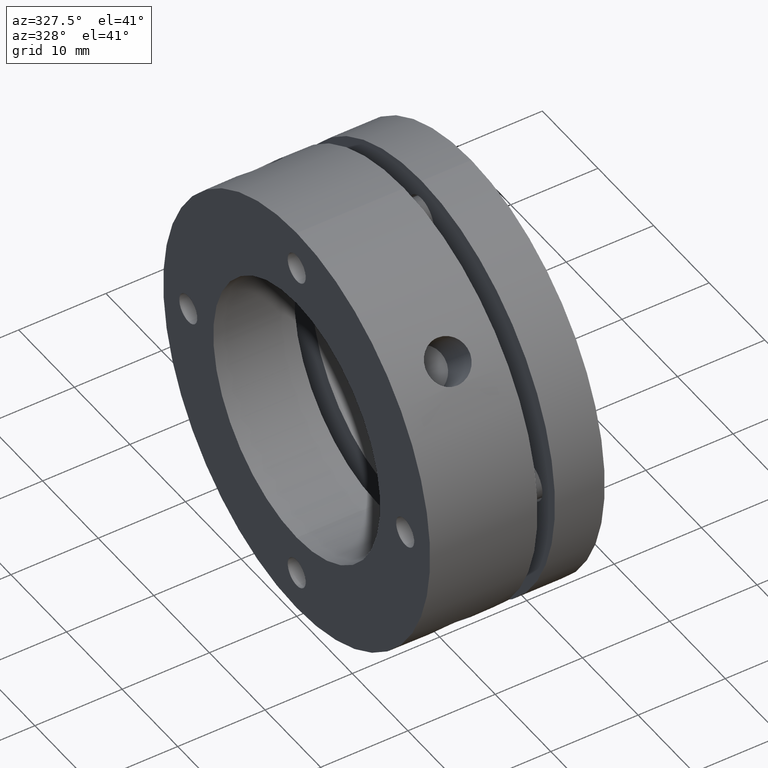
[diagram: clean part render]
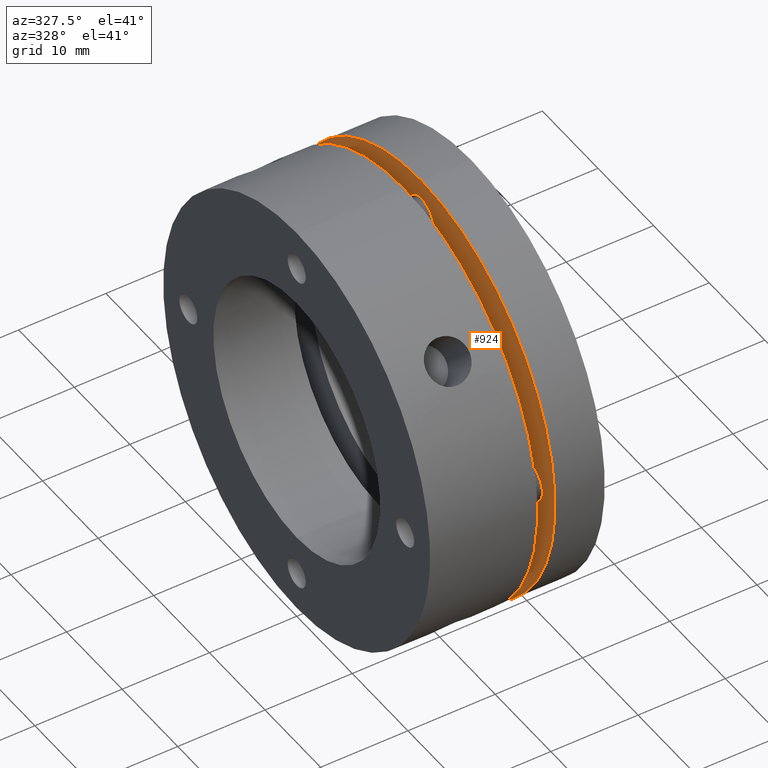
[diagram: same view with one face highlighted and labeled with its STEP entity id]
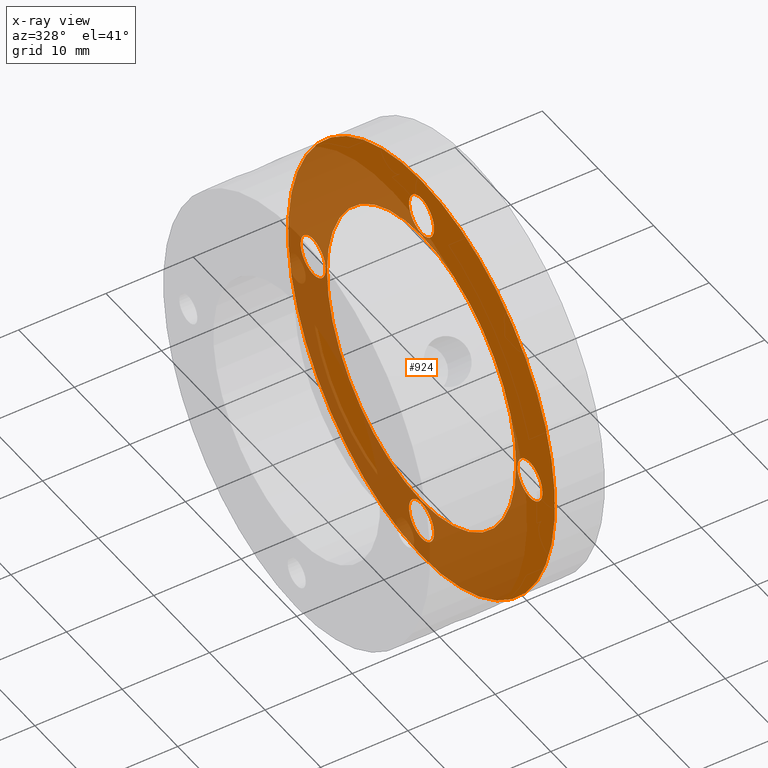
[diagram: x-ray of the same camera — body ghosted, the highlighted face saturated]
A machine part, auxiliary view. The second image highlights one B-rep face of the part: STEP entity #924.
The next image is the same camera in x-ray: the body ghosted, the highlighted face saturated — about 57% of this face is hidden behind the body in this view.
In plain terms, the highlighted planar face has unit normal (1, 0, 0).
Its self-contained STEP definition (entity closure, byte-faithful):
#240 = AXIS2_PLACEMENT_3D ( 'NONE', #1608, #1603, #1610 ) ;
#275 = VERTEX_POINT ( 'NONE', #1115 ) ;
#276 = VERTEX_POINT ( 'NONE', #1119 ) ;
#279 = VERTEX_POINT ( 'NONE', #1113 ) ;
#289 = VERTEX_POINT ( 'NONE', #1166 ) ;
#296 = VERTEX_POINT ( 'NONE', #1173 ) ;
#300 = VERTEX_POINT ( 'NONE', #1177 ) ;
#303 = VERTEX_POINT ( 'NONE', #1180 ) ;
#479 = AXIS2_PLACEMENT_3D ( 'NONE', #1315, #1316, #1317 ) ;
#492 = AXIS2_PLACEMENT_3D ( 'NONE', #1292, #1293, #1294 ) ;
#572 = CIRCLE ( 'NONE', #492, 24.00000000000000400 ) ;
#583 = CIRCLE ( 'NONE', #479, 2.250000000000000400 ) ;
#772 = FACE_BOUND ( 'NONE', #3558, .T. ) ;
#773 = FACE_BOUND ( 'NONE', #3171, .T. ) ;
#774 = FACE_BOUND ( 'NONE', #3556, .T. ) ;
#775 = FACE_BOUND ( 'NONE', #3201, .T. ) ;
#776 = FACE_BOUND ( 'NONE', #3543, .T. ) ;
#777 = FACE_OUTER_BOUND ( 'NONE', #3557, .T. ) ;
#815 = EDGE_CURVE ( 'NONE', #1002, #1047, #572, .T. ) ;
#824 = EDGE_CURVE ( 'NONE', #1080, #998, #583, .T. ) ;
#924 = ADVANCED_FACE ( 'NONE', ( #772, #776, #773, #775, #774, #777 ), #1607, .F. ) ;
#998 = VERTEX_POINT ( 'NONE', #1708 ) ;
#1002 = VERTEX_POINT ( 'NONE', #1707 ) ;
#1047 = VERTEX_POINT ( 'NONE', #1723 ) ;
#1066 = VERTEX_POINT ( 'NONE', #1731 ) ;
#1080 = VERTEX_POINT ( 'NONE', #1734 ) ;
#1113 = CARTESIAN_POINT ( 'NONE',  ( 14.29999999999999900, 2.081899558550500300E-015, -17.00000000000000000 ) ) ;
#1115 = CARTESIAN_POINT ( 'NONE',  ( 14.29999999999999900, -2.388060999999999800E-015, -21.75000000000001100 ) ) ;
#1119 = CARTESIAN_POINT ( 'NONE',  ( 14.29999999999999900, 0.0000000000000000000, 17.00000000000000000 ) ) ;
#1166 = CARTESIAN_POINT ( 'NONE',  ( 14.29999999999999900, -19.50000000000001400, 2.250000000000001800 ) ) ;
#1173 = CARTESIAN_POINT ( 'NONE',  ( 14.29999999999999900, -19.50000000000001400, -2.249999999999999100 ) ) ;
#1177 = CARTESIAN_POINT ( 'NONE',  ( 14.29999999999999900, 2.755455298081546700E-016, 21.75000000000001100 ) ) ;
#1180 = CARTESIAN_POINT ( 'NONE',  ( 14.29999999999999900, 0.0000000000000000000, 17.25000000000001400 ) ) ;
#1292 = CARTESIAN_POINT ( 'NONE',  ( 14.29999999999999900, 0.0000000000000000000, 0.0000000000000000000 ) ) ;
#1293 = DIRECTION ( 'NONE',  ( 1.000000000000000000, 0.0000000000000000000, 0.0000000000000000000 ) ) ;
#1294 = DIRECTION ( 'NONE',  ( 0.0000000000000000000, 0.0000000000000000000, -1.000000000000000000 ) ) ;
#1315 = CARTESIAN_POINT ( 'NONE',  ( 14.29999999999999900, 19.50000000000001400, -3.582092000000000200E-015 ) ) ;
#1316 = DIRECTION ( 'NONE',  ( -1.000000000000000000, -0.0000000000000000000, -0.0000000000000000000 ) ) ;
#1317 = DIRECTION ( 'NONE',  ( 0.0000000000000000000, 0.0000000000000000000, -1.000000000000000000 ) ) ;
#1603 = DIRECTION ( 'NONE',  ( 1.000000000000000000, -0.0000000000000000000, 0.0000000000000000000 ) ) ;
#1607 = PLANE ( 'NONE',  #240 ) ;
#1608 = CARTESIAN_POINT ( 'NONE',  ( 14.29999999999999900, 20.50000000000000400, 0.0000000000000000000 ) ) ;
#1610 = DIRECTION ( 'NONE',  ( 0.0000000000000000000, 0.0000000000000000000, -1.000000000000000000 ) ) ;
#1707 = CARTESIAN_POINT ( 'NONE',  ( 14.29999999999999900, 0.0000000000000000000, -24.00000000000000400 ) ) ;
#1708 = CARTESIAN_POINT ( 'NONE',  ( 14.29999999999999900, 19.50000000000001400, 2.249999999999996900 ) ) ;
#1723 = CARTESIAN_POINT ( 'NONE',  ( 14.29999999999999900, 2.939152317953648300E-015, 24.00000000000000400 ) ) ;
#1731 = CARTESIAN_POINT ( 'NONE',  ( 14.29999999999999900, -2.112515470191844900E-015, -17.25000000000001400 ) ) ;
#1734 = CARTESIAN_POINT ( 'NONE',  ( 14.29999999999999900, 19.50000000000001400, -2.250000000000003600 ) ) ;
#1838 = CARTESIAN_POINT ( 'NONE',  ( 14.29999999999999900, 0.0000000000000000000, 0.0000000000000000000 ) ) ;
#1839 = DIRECTION ( 'NONE',  ( 1.000000000000000000, 0.0000000000000000000, 0.0000000000000000000 ) ) ;
#1840 = DIRECTION ( 'NONE',  ( 0.0000000000000000000, 0.0000000000000000000, -1.000000000000000000 ) ) ;
#1843 = CARTESIAN_POINT ( 'NONE',  ( 14.29999999999999900, 19.50000000000001400, -3.582092000000000200E-015 ) ) ;
#1844 = DIRECTION ( 'NONE',  ( -1.000000000000000000, -0.0000000000000000000, -0.0000000000000000000 ) ) ;
#1845 = DIRECTION ( 'NONE',  ( 0.0000000000000000000, 0.0000000000000000000, -1.000000000000000000 ) ) ;
#2138 = CARTESIAN_POINT ( 'NONE',  ( 14.29999999999999900, -2.388060999999999800E-015, -19.50000000000001400 ) ) ;
#2139 = DIRECTION ( 'NONE',  ( -1.000000000000000000, -0.0000000000000000000, -0.0000000000000000000 ) ) ;
#2140 = DIRECTION ( 'NONE',  ( 0.0000000000000000000, 0.0000000000000000000, -1.000000000000000000 ) ) ;
#2141 = CARTESIAN_POINT ( 'NONE',  ( 14.29999999999999900, -19.50000000000001400, 1.194031000000000000E-015 ) ) ;
#2142 = DIRECTION ( 'NONE',  ( -1.000000000000000000, -0.0000000000000000000, -0.0000000000000000000 ) ) ;
#2143 = DIRECTION ( 'NONE',  ( 0.0000000000000000000, 0.0000000000000000000, -1.000000000000000000 ) ) ;
#2144 = CARTESIAN_POINT ( 'NONE',  ( 14.29999999999999900, 0.0000000000000000000, 19.50000000000001400 ) ) ;
#2145 = DIRECTION ( 'NONE',  ( -1.000000000000000000, -0.0000000000000000000, -0.0000000000000000000 ) ) ;
#2146 = DIRECTION ( 'NONE',  ( 0.0000000000000000000, 0.0000000000000000000, -1.000000000000000000 ) ) ;
#2165 = CARTESIAN_POINT ( 'NONE',  ( 14.29999999999999900, 0.0000000000000000000, 0.0000000000000000000 ) ) ;
#2166 = DIRECTION ( 'NONE',  ( -1.000000000000000000, 0.0000000000000000000, 0.0000000000000000000 ) ) ;
#2167 = DIRECTION ( 'NONE',  ( 0.0000000000000000000, 0.0000000000000000000, 1.000000000000000000 ) ) ;
#2284 = CARTESIAN_POINT ( 'NONE',  ( 14.29999999999999900, -19.50000000000001400, 1.194031000000000000E-015 ) ) ;
#2285 = DIRECTION ( 'NONE',  ( -1.000000000000000000, -0.0000000000000000000, -0.0000000000000000000 ) ) ;
#2286 = DIRECTION ( 'NONE',  ( 0.0000000000000000000, 0.0000000000000000000, -1.000000000000000000 ) ) ;
#2288 = CARTESIAN_POINT ( 'NONE',  ( 14.29999999999999900, 0.0000000000000000000, 19.50000000000001400 ) ) ;
#2289 = DIRECTION ( 'NONE',  ( -1.000000000000000000, -0.0000000000000000000, -0.0000000000000000000 ) ) ;
#2290 = DIRECTION ( 'NONE',  ( 0.0000000000000000000, 0.0000000000000000000, -1.000000000000000000 ) ) ;
#2368 = CARTESIAN_POINT ( 'NONE',  ( 14.29999999999999900, -2.388060999999999800E-015, -19.50000000000001400 ) ) ;
#2369 = DIRECTION ( 'NONE',  ( -1.000000000000000000, -0.0000000000000000000, -0.0000000000000000000 ) ) ;
#2370 = DIRECTION ( 'NONE',  ( 0.0000000000000000000, 0.0000000000000000000, -1.000000000000000000 ) ) ;
#2381 = CARTESIAN_POINT ( 'NONE',  ( 14.29999999999999900, 0.0000000000000000000, 0.0000000000000000000 ) ) ;
#2382 = DIRECTION ( 'NONE',  ( -1.000000000000000000, 0.0000000000000000000, 0.0000000000000000000 ) ) ;
#2383 = DIRECTION ( 'NONE',  ( 0.0000000000000000000, 0.0000000000000000000, 1.000000000000000000 ) ) ;
#2615 = CIRCLE ( 'NONE', #3362, 24.00000000000000400 ) ;
#2617 = CIRCLE ( 'NONE', #3363, 2.250000000000000400 ) ;
#2680 = CIRCLE ( 'NONE', #3378, 2.249999999999998700 ) ;
#2681 = CIRCLE ( 'NONE', #3379, 2.250000000000000400 ) ;
#2683 = CIRCLE ( 'NONE', #3380, 2.249999999999998700 ) ;
#2691 = CIRCLE ( 'NONE', #3387, 17.00000000000000000 ) ;
#2759 = CIRCLE ( 'NONE', #2872, 2.250000000000000400 ) ;
#2762 = CIRCLE ( 'NONE', #2873, 2.249999999999998700 ) ;
#2786 = CIRCLE ( 'NONE', #2884, 2.249999999999998700 ) ;
#2793 = CIRCLE ( 'NONE', #2886, 17.00000000000000000 ) ;
#2863 = EDGE_CURVE ( 'NONE', #1047, #1002, #2615, .T. ) ;
#2864 = EDGE_CURVE ( 'NONE', #998, #1080, #2617, .T. ) ;
#2872 = AXIS2_PLACEMENT_3D ( 'NONE', #2284, #2285, #2286 ) ;
#2873 = AXIS2_PLACEMENT_3D ( 'NONE', #2288, #2289, #2290 ) ;
#2884 = AXIS2_PLACEMENT_3D ( 'NONE', #2368, #2369, #2370 ) ;
#2886 = AXIS2_PLACEMENT_3D ( 'NONE', #2381, #2382, #2383 ) ;
#3171 = EDGE_LOOP ( 'NONE', ( #3273, #3272 ) ) ;
#3201 = EDGE_LOOP ( 'NONE', ( #3271, #3270 ) ) ;
#3266 = ORIENTED_EDGE ( 'NONE', *, *, #2863, .F. ) ;
#3267 = ORIENTED_EDGE ( 'NONE', *, *, #815, .F. ) ;
#3268 = ORIENTED_EDGE ( 'NONE', *, *, #2864, .F. ) ;
#3269 = ORIENTED_EDGE ( 'NONE', *, *, #824, .F. ) ;
#3270 = ORIENTED_EDGE ( 'NONE', *, *, #3300, .F. ) ;
#3271 = ORIENTED_EDGE ( 'NONE', *, *, #3507, .F. ) ;
#3272 = ORIENTED_EDGE ( 'NONE', *, *, #3301, .F. ) ;
#3273 = ORIENTED_EDGE ( 'NONE', *, *, #3487, .F. ) ;
#3274 = ORIENTED_EDGE ( 'NONE', *, *, #3302, .F. ) ;
#3275 = ORIENTED_EDGE ( 'NONE', *, *, #3489, .F. ) ;
#3276 = ORIENTED_EDGE ( 'NONE', *, *, #3309, .F. ) ;
#3277 = ORIENTED_EDGE ( 'NONE', *, *, #3512, .F. ) ;
#3300 = EDGE_CURVE ( 'NONE', #1066, #275, #2680, .T. ) ;
#3301 = EDGE_CURVE ( 'NONE', #289, #296, #2681, .T. ) ;
#3302 = EDGE_CURVE ( 'NONE', #300, #303, #2683, .T. ) ;
#3309 = EDGE_CURVE ( 'NONE', #279, #276, #2691, .T. ) ;
#3362 = AXIS2_PLACEMENT_3D ( 'NONE', #1838, #1839, #1840 ) ;
#3363 = AXIS2_PLACEMENT_3D ( 'NONE', #1843, #1844, #1845 ) ;
#3378 = AXIS2_PLACEMENT_3D ( 'NONE', #2138, #2139, #2140 ) ;
#3379 = AXIS2_PLACEMENT_3D ( 'NONE', #2141, #2142, #2143 ) ;
#3380 = AXIS2_PLACEMENT_3D ( 'NONE', #2144, #2145, #2146 ) ;
#3387 = AXIS2_PLACEMENT_3D ( 'NONE', #2165, #2166, #2167 ) ;
#3487 = EDGE_CURVE ( 'NONE', #296, #289, #2759, .T. ) ;
#3489 = EDGE_CURVE ( 'NONE', #303, #300, #2762, .T. ) ;
#3507 = EDGE_CURVE ( 'NONE', #275, #1066, #2786, .T. ) ;
#3512 = EDGE_CURVE ( 'NONE', #276, #279, #2793, .T. ) ;
#3543 = EDGE_LOOP ( 'NONE', ( #3275, #3274 ) ) ;
#3556 = EDGE_LOOP ( 'NONE', ( #3269, #3268 ) ) ;
#3557 = EDGE_LOOP ( 'NONE', ( #3267, #3266 ) ) ;
#3558 = EDGE_LOOP ( 'NONE', ( #3277, #3276 ) ) ;